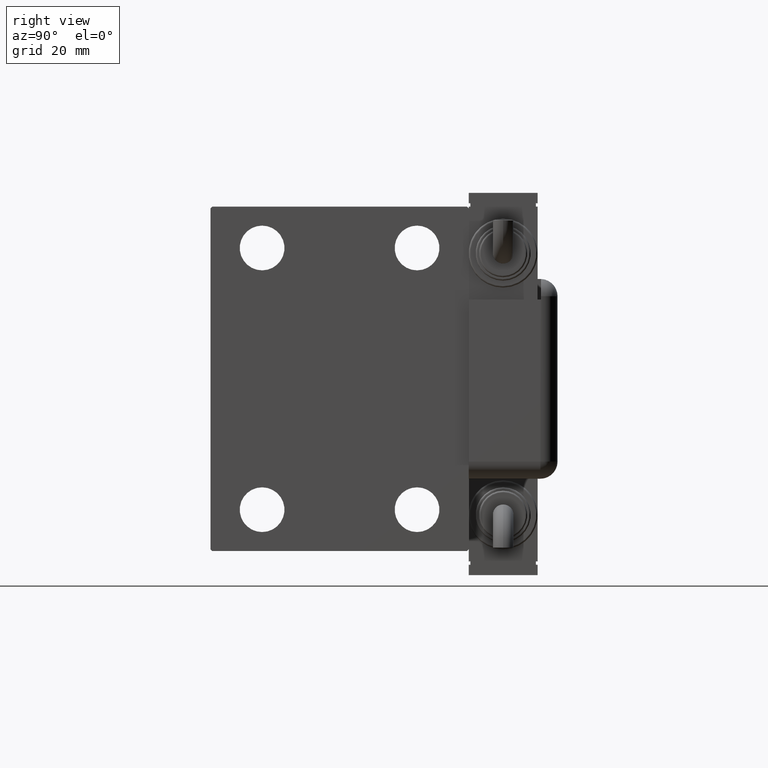
[diagram: clean part render]
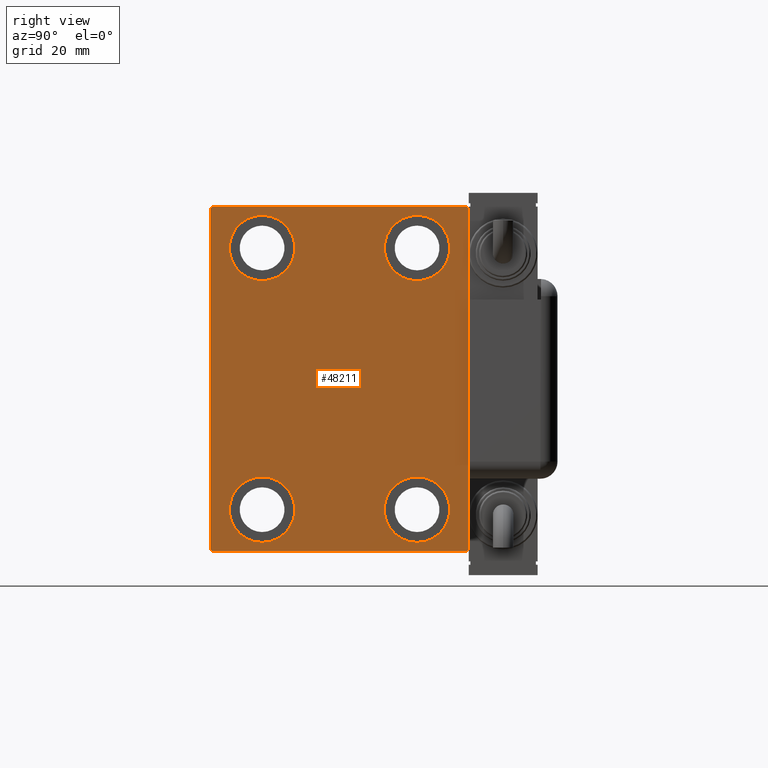
[diagram: same view with one face highlighted and labeled with its STEP entity id]
A machine part, right view. The second image highlights one B-rep face of the part: STEP entity #48211.
In plain terms, the highlighted planar face has unit normal (1, 0, 0).
Its self-contained STEP definition (entity closure, byte-faithful):
#460 = ORIENTED_EDGE ( 'NONE', *, *, #3777, .T. ) ;
#761 = DIRECTION ( 'NONE',  ( -1.000000000000000000, -0.000000000000000000, -0.000000000000000000 ) ) ;
#870 = LINE ( 'NONE', #6009, #26341 ) ;
#1372 = CIRCLE ( 'NONE', #50680, 9.500000000000001776 ) ;
#2221 = CARTESIAN_POINT ( 'NONE',  ( 98.00000000000000000, 37.50000000000000711, -50.00000000000000000 ) ) ;
#3723 = DIRECTION ( 'NONE',  ( 0.000000000000000000, 0.000000000000000000, 1.000000000000000000 ) ) ;
#3777 = EDGE_CURVE ( 'NONE', #33695, #53848, #15636, .T. ) ;
#4071 = ORIENTED_EDGE ( 'NONE', *, *, #9114, .T. ) ;
#4332 = EDGE_LOOP ( 'NONE', ( #43510, #4071 ) ) ;
#5326 = VECTOR ( 'NONE', #8159, 1000.000000000000000 ) ;
#5340 = EDGE_CURVE ( 'NONE', #47484, #48428, #10887, .T. ) ;
#6009 = CARTESIAN_POINT ( 'NONE',  ( 98.00000000000000000, 37.49999999999999289, 50.00000000000000711 ) ) ;
#6328 = CARTESIAN_POINT ( 'NONE',  ( 98.00000000000000000, 22.49999999999999645, -37.99999999999999289 ) ) ;
#6375 = EDGE_CURVE ( 'NONE', #27915, #41544, #870, .T. ) ;
#6549 = CIRCLE ( 'NONE', #47103, 9.500000000000001776 ) ;
#7607 = CIRCLE ( 'NONE', #49192, 9.500000000000001776 ) ;
#8159 = DIRECTION ( 'NONE',  ( 0.000000000000000000, 0.000000000000000000, -1.000000000000000000 ) ) ;
#8292 = DIRECTION ( 'NONE',  ( -1.000000000000000000, -0.000000000000000000, -0.000000000000000000 ) ) ;
#9114 = EDGE_CURVE ( 'NONE', #48428, #47484, #1372, .T. ) ;
#9551 = FACE_BOUND ( 'NONE', #54265, .T. ) ;
#9639 = ORIENTED_EDGE ( 'NONE', *, *, #16982, .T. ) ;
#10027 = ORIENTED_EDGE ( 'NONE', *, *, #25385, .T. ) ;
#10584 = DIRECTION ( 'NONE',  ( -1.000000000000000000, -0.000000000000000000, -0.000000000000000000 ) ) ;
#10887 = CIRCLE ( 'NONE', #48602, 9.500000000000001776 ) ;
#11572 = DIRECTION ( 'NONE',  ( -0.000000000000000000, 0.7071067811865474617, 0.7071067811865474617 ) ) ;
#12631 = VECTOR ( 'NONE', #17745, 1000.000000000000114 ) ;
#13793 = FACE_OUTER_BOUND ( 'NONE', #41352, .T. ) ;
#14050 = VERTEX_POINT ( 'NONE', #15197 ) ;
#15197 = CARTESIAN_POINT ( 'NONE',  ( 98.00000000000000000, 37.00000000000000711, -50.00000000000000000 ) ) ;
#15400 = DIRECTION ( 'NONE',  ( -1.000000000000000000, -0.000000000000000000, -0.000000000000000000 ) ) ;
#15636 = CIRCLE ( 'NONE', #29190, 9.500000000000001776 ) ;
#15820 = EDGE_CURVE ( 'NONE', #30893, #16425, #35985, .T. ) ;
#16425 = VERTEX_POINT ( 'NONE', #45463 ) ;
#16973 = CIRCLE ( 'NONE', #52765, 9.500000000000001776 ) ;
#16982 = EDGE_CURVE ( 'NONE', #27970, #27915, #26849, .T. ) ;
#17353 = DIRECTION ( 'NONE',  ( -1.000000000000000000, -0.000000000000000000, -0.000000000000000000 ) ) ;
#17459 = VERTEX_POINT ( 'NONE', #38793 ) ;
#17703 = CARTESIAN_POINT ( 'NONE',  ( 98.00000000000000000, -22.49999999999999645, 28.49999999999998934 ) ) ;
#17745 = DIRECTION ( 'NONE',  ( -0.000000000000000000, 0.7071067811865474617, -0.7071067811865474617 ) ) ;
#18627 = PLANE ( 'NONE',  #42271 ) ;
#19334 = DIRECTION ( 'NONE',  ( 0.000000000000000000, -1.000000000000000000, -1.850371707708594316E-16 ) ) ;
#19442 = CARTESIAN_POINT ( 'NONE',  ( 98.00000000000000000, 22.49999999999999645, -47.49999999999999289 ) ) ;
#20269 = EDGE_CURVE ( 'NONE', #41544, #30893, #36359, .T. ) ;
#20657 = CARTESIAN_POINT ( 'NONE',  ( 98.00000000000000000, 43.50000000000000711, -43.50000000000000711 ) ) ;
#20831 = CARTESIAN_POINT ( 'NONE',  ( 98.00000000000000000, 22.50000000000000355, 37.99999999999999289 ) ) ;
#20846 = DIRECTION ( 'NONE',  ( 0.000000000000000000, 0.000000000000000000, 1.000000000000000000 ) ) ;
#21067 = CIRCLE ( 'NONE', #54903, 9.500000000000001776 ) ;
#22203 = VERTEX_POINT ( 'NONE', #27725 ) ;
#23003 = EDGE_CURVE ( 'NONE', #33824, #27970, #42807, .T. ) ;
#23765 = FACE_BOUND ( 'NONE', #27081, .T. ) ;
#24618 = CARTESIAN_POINT ( 'NONE',  ( 98.00000000000000000, -22.50000000000000711, -28.49999999999998934 ) ) ;
#24643 = EDGE_CURVE ( 'NONE', #17459, #14050, #50333, .T. ) ;
#24683 = VERTEX_POINT ( 'NONE', #19442 ) ;
#25044 = VECTOR ( 'NONE', #50032, 1000.000000000000000 ) ;
#25385 = EDGE_CURVE ( 'NONE', #51645, #24683, #7607, .T. ) ;
#26251 = DIRECTION ( 'NONE',  ( -0.000000000000000000, -0.7071067811865425767, 0.7071067811865525687 ) ) ;
#26341 = VECTOR ( 'NONE', #19334, 1000.000000000000000 ) ;
#26746 = CARTESIAN_POINT ( 'NONE',  ( 98.00000000000000000, -22.50000000000000711, -37.99999999999999289 ) ) ;
#26849 = LINE ( 'NONE', #36217, #39351 ) ;
#27081 = EDGE_LOOP ( 'NONE', ( #40946, #10027 ) ) ;
#27134 = ORIENTED_EDGE ( 'NONE', *, *, #48350, .T. ) ;
#27173 = DIRECTION ( 'NONE',  ( 0.000000000000000000, 0.000000000000000000, 1.000000000000000000 ) ) ;
#27350 = ORIENTED_EDGE ( 'NONE', *, *, #15820, .T. ) ;
#27725 = CARTESIAN_POINT ( 'NONE',  ( 98.00000000000000000, 22.50000000000000355, 28.49999999999998934 ) ) ;
#27915 = VERTEX_POINT ( 'NONE', #50021 ) ;
#27970 = VERTEX_POINT ( 'NONE', #41235 ) ;
#28567 = EDGE_CURVE ( 'NONE', #56857, #22203, #34770, .T. ) ;
#28604 = DIRECTION ( 'NONE',  ( 0.000000000000000000, 0.000000000000000000, 1.000000000000000000 ) ) ;
#28885 = DIRECTION ( 'NONE',  ( -1.000000000000000000, -0.000000000000000000, -0.000000000000000000 ) ) ;
#29190 = AXIS2_PLACEMENT_3D ( 'NONE', #52928, #49279, #20846 ) ;
#29843 = VECTOR ( 'NONE', #54541, 1000.000000000000114 ) ;
#30207 = DIRECTION ( 'NONE',  ( 0.000000000000000000, 0.000000000000000000, 1.000000000000000000 ) ) ;
#30459 = EDGE_CURVE ( 'NONE', #16425, #17459, #49236, .T. ) ;
#30893 = VERTEX_POINT ( 'NONE', #36200 ) ;
#31156 = CARTESIAN_POINT ( 'NONE',  ( 98.00000000000000000, -37.50000000000000711, 49.99999999999999289 ) ) ;
#31861 = CARTESIAN_POINT ( 'NONE',  ( 98.00000000000000000, -22.49999999999999645, 37.99999999999999289 ) ) ;
#32244 = DIRECTION ( 'NONE',  ( 1.000000000000000000, 0.000000000000000000, 0.000000000000000000 ) ) ;
#32816 = CARTESIAN_POINT ( 'NONE',  ( 98.00000000000000000, 22.50000000000000355, 37.99999999999999289 ) ) ;
#32835 = FACE_BOUND ( 'NONE', #39249, .T. ) ;
#33132 = FACE_BOUND ( 'NONE', #4332, .T. ) ;
#33695 = VERTEX_POINT ( 'NONE', #42281 ) ;
#33824 = VERTEX_POINT ( 'NONE', #52574 ) ;
#33999 = DIRECTION ( 'NONE',  ( 0.000000000000000000, -1.387778780781445676E-16, 1.000000000000000000 ) ) ;
#34770 = CIRCLE ( 'NONE', #44483, 9.500000000000001776 ) ;
#35643 = CARTESIAN_POINT ( 'NONE',  ( 98.00000000000000000, -22.49999999999999645, 37.99999999999999289 ) ) ;
#35895 = CARTESIAN_POINT ( 'NONE',  ( 98.00000000000000000, -43.50000000000000000, -43.50000000000000000 ) ) ;
#35957 = ORIENTED_EDGE ( 'NONE', *, *, #6375, .T. ) ;
#35985 = LINE ( 'NONE', #31156, #5326 ) ;
#36200 = CARTESIAN_POINT ( 'NONE',  ( 98.00000000000000000, -37.50000000000000711, 49.49999999999997868 ) ) ;
#36217 = CARTESIAN_POINT ( 'NONE',  ( 98.00000000000000000, 43.50000000000026290, 43.49999999999965894 ) ) ;
#36359 = LINE ( 'NONE', #36959, #29843 ) ;
#36915 = EDGE_CURVE ( 'NONE', #14050, #33824, #57589, .T. ) ;
#36925 = CARTESIAN_POINT ( 'NONE',  ( 98.00000000000000000, 22.49999999999999645, -28.49999999999998934 ) ) ;
#36959 = CARTESIAN_POINT ( 'NONE',  ( 98.00000000000000000, -43.49999999999998579, 43.49999999999998579 ) ) ;
#38157 = CARTESIAN_POINT ( 'NONE',  ( 98.00000000000000000, -36.99999999999999289, 49.99999999999999289 ) ) ;
#38455 = VECTOR ( 'NONE', #33999, 1000.000000000000000 ) ;
#38793 = CARTESIAN_POINT ( 'NONE',  ( 98.00000000000000000, -36.99999999999999289, -50.00000000000000711 ) ) ;
#39249 = EDGE_LOOP ( 'NONE', ( #460, #27134 ) ) ;
#39351 = VECTOR ( 'NONE', #26251, 999.9999999999998863 ) ;
#40793 = DIRECTION ( 'NONE',  ( -1.000000000000000000, -0.000000000000000000, -0.000000000000000000 ) ) ;
#40946 = ORIENTED_EDGE ( 'NONE', *, *, #56121, .T. ) ;
#41235 = CARTESIAN_POINT ( 'NONE',  ( 98.00000000000000000, 37.49999999999999289, 49.50000000000000000 ) ) ;
#41352 = EDGE_LOOP ( 'NONE', ( #35957, #47461, #27350, #50013, #56248, #52176, #42071, #9639 ) ) ;
#41544 = VERTEX_POINT ( 'NONE', #38157 ) ;
#42071 = ORIENTED_EDGE ( 'NONE', *, *, #23003, .T. ) ;
#42229 = CARTESIAN_POINT ( 'NONE',  ( 98.00000000000000000, 22.49999999999999645, -37.99999999999999289 ) ) ;
#42271 = AXIS2_PLACEMENT_3D ( 'NONE', #51615, #32244, #59516 ) ;
#42281 = CARTESIAN_POINT ( 'NONE',  ( 98.00000000000000000, -22.50000000000000711, -47.49999999999999289 ) ) ;
#42359 = CARTESIAN_POINT ( 'NONE',  ( 98.00000000000000000, 22.50000000000000355, 47.49999999999999289 ) ) ;
#42807 = LINE ( 'NONE', #2221, #38455 ) ;
#43510 = ORIENTED_EDGE ( 'NONE', *, *, #5340, .T. ) ;
#43694 = VECTOR ( 'NONE', #11572, 1000.000000000000114 ) ;
#44483 = AXIS2_PLACEMENT_3D ( 'NONE', #32816, #28885, #47345 ) ;
#45221 = DIRECTION ( 'NONE',  ( 0.000000000000000000, 0.000000000000000000, 1.000000000000000000 ) ) ;
#45463 = CARTESIAN_POINT ( 'NONE',  ( 98.00000000000000000, -37.50000000000000711, -49.49999999999999289 ) ) ;
#45814 = CARTESIAN_POINT ( 'NONE',  ( 98.00000000000000000, -22.49999999999999645, 47.49999999999999289 ) ) ;
#47103 = AXIS2_PLACEMENT_3D ( 'NONE', #26746, #8292, #45221 ) ;
#47171 = EDGE_CURVE ( 'NONE', #22203, #56857, #16973, .T. ) ;
#47345 = DIRECTION ( 'NONE',  ( 0.000000000000000000, 0.000000000000000000, 1.000000000000000000 ) ) ;
#47461 = ORIENTED_EDGE ( 'NONE', *, *, #20269, .T. ) ;
#47484 = VERTEX_POINT ( 'NONE', #17703 ) ;
#48211 = ADVANCED_FACE ( 'NONE', ( #23765, #33132, #9551, #32835, #13793 ), #18627, .T. ) ;
#48350 = EDGE_CURVE ( 'NONE', #53848, #33695, #6549, .T. ) ;
#48428 = VERTEX_POINT ( 'NONE', #45814 ) ;
#48602 = AXIS2_PLACEMENT_3D ( 'NONE', #31861, #17353, #3723 ) ;
#49192 = AXIS2_PLACEMENT_3D ( 'NONE', #42229, #761, #28604 ) ;
#49236 = LINE ( 'NONE', #35895, #12631 ) ;
#49279 = DIRECTION ( 'NONE',  ( -1.000000000000000000, -0.000000000000000000, -0.000000000000000000 ) ) ;
#50013 = ORIENTED_EDGE ( 'NONE', *, *, #30459, .T. ) ;
#50021 = CARTESIAN_POINT ( 'NONE',  ( 98.00000000000000000, 36.99999999999999289, 50.00000000000000711 ) ) ;
#50032 = DIRECTION ( 'NONE',  ( 0.000000000000000000, 1.000000000000000000, 9.251858538542970348E-17 ) ) ;
#50333 = LINE ( 'NONE', #54274, #25044 ) ;
#50680 = AXIS2_PLACEMENT_3D ( 'NONE', #35643, #40793, #27173 ) ;
#51117 = ORIENTED_EDGE ( 'NONE', *, *, #28567, .T. ) ;
#51615 = CARTESIAN_POINT ( 'NONE',  ( 98.00000000000000000, 0.000000000000000000, 0.000000000000000000 ) ) ;
#51645 = VERTEX_POINT ( 'NONE', #36925 ) ;
#52176 = ORIENTED_EDGE ( 'NONE', *, *, #36915, .T. ) ;
#52574 = CARTESIAN_POINT ( 'NONE',  ( 98.00000000000000000, 37.50000000000000711, -49.50000000000000000 ) ) ;
#52765 = AXIS2_PLACEMENT_3D ( 'NONE', #20831, #15400, #30207 ) ;
#52928 = CARTESIAN_POINT ( 'NONE',  ( 98.00000000000000000, -22.50000000000000711, -37.99999999999999289 ) ) ;
#53349 = ORIENTED_EDGE ( 'NONE', *, *, #47171, .T. ) ;
#53848 = VERTEX_POINT ( 'NONE', #24618 ) ;
#54265 = EDGE_LOOP ( 'NONE', ( #53349, #51117 ) ) ;
#54274 = CARTESIAN_POINT ( 'NONE',  ( 98.00000000000000000, -37.50000000000000711, -50.00000000000000711 ) ) ;
#54541 = DIRECTION ( 'NONE',  ( 0.000000000000000000, -0.7071067811865474617, -0.7071067811865474617 ) ) ;
#54903 = AXIS2_PLACEMENT_3D ( 'NONE', #6328, #10584, #56888 ) ;
#56121 = EDGE_CURVE ( 'NONE', #24683, #51645, #21067, .T. ) ;
#56248 = ORIENTED_EDGE ( 'NONE', *, *, #24643, .T. ) ;
#56857 = VERTEX_POINT ( 'NONE', #42359 ) ;
#56888 = DIRECTION ( 'NONE',  ( 0.000000000000000000, 0.000000000000000000, 1.000000000000000000 ) ) ;
#57589 = LINE ( 'NONE', #20657, #43694 ) ;
#59516 = DIRECTION ( 'NONE',  ( 0.000000000000000000, 0.000000000000000000, -1.000000000000000000 ) ) ;